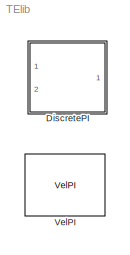
MODEL TElib
KIND library
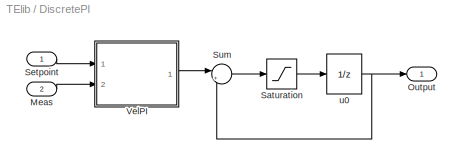
BLOCK [SubSystem] DiscretePI
  Ports = [2, 1]
  RequestExecContextInheritance = off
  SID = 1
BLOCK [Inport] DiscretePI/Meas
  Port = 2
  SID = 3
BLOCK [Outport] DiscretePI/Output
  SID = 17
BLOCK [Saturate] DiscretePI/Saturation
  LowerLimit = Lo
  SID = 4
  UpperLimit = Hi
BLOCK [Inport] DiscretePI/Setpoint
  SID = 2
BLOCK [Sum] DiscretePI/Sum
  Inputs = |++
  Ports = [2, 1]
  SID = 5
  SaturateOnIntegerOverflow = on
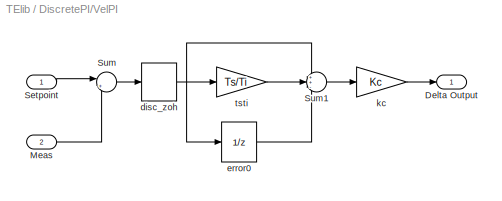
BLOCK [SubSystem] DiscretePI/VelPI
  Ports = [2, 1]
  RequestExecContextInheritance = off
  SID = 7
BLOCK [Outport] DiscretePI/VelPI/Delta Output
  SID = 16
BLOCK [Inport] DiscretePI/VelPI/Meas
  Port = 2
  SID = 9
BLOCK [Inport] DiscretePI/VelPI/Setpoint
  SID = 8
BLOCK [Sum] DiscretePI/VelPI/Sum
  Inputs = |+-
  Ports = [2, 1]
  SID = 12
  SaturateOnIntegerOverflow = on
BLOCK [Sum] DiscretePI/VelPI/Sum1
  Inputs = ++-
  Ports = [3, 1]
  SID = 13
  SaturateOnIntegerOverflow = on
BLOCK [ZeroOrderHold] DiscretePI/VelPI/disc_zoh
  SID = 15
  SampleTime = Ts
BLOCK [UnitDelay] DiscretePI/VelPI/error0
  SID = 14
  SampleTime = Ts
BLOCK [Gain] DiscretePI/VelPI/kc
  Gain = Kc
  OutDataTypeStr = Inherit: Same as input
  ParamDataTypeStr = Inherit: Same as input
  SID = 10
  SaturateOnIntegerOverflow = on
BLOCK [Gain] DiscretePI/VelPI/tsti
  Gain = Ts/Ti
  OutDataTypeStr = Inherit: Same as input
  ParamDataTypeStr = Inherit: Same as input
  SID = 11
  SaturateOnIntegerOverflow = on
BLOCK [UnitDelay] DiscretePI/u0
  InitialCondition = x0
  SID = 6
  SampleTime = Ts
BLOCK [Reference] VelPI  REF=$bdroot/DiscretePI/VelPI
  Kc = Kc
  Ports = [2, 1]
  RTWMemSecDataConstants = Inherit from model
  RTWMemSecDataInternal = Inherit from model
  RTWMemSecDataParameters = Inherit from model
  RTWMemSecFuncExecute = Inherit from model
  RTWMemSecFuncInitTerm = Inherit from model
  SID = 18
  SourceBlock = $bdroot/DiscretePI/VelPI
  Ti = Ti
  Ts = Ts
LINE DiscretePI/Meas:1 -> DiscretePI/VelPI:2
LINE DiscretePI/Saturation:1 -> DiscretePI/u0:1
LINE DiscretePI/Setpoint:1 -> DiscretePI/VelPI:1
LINE DiscretePI/Sum:1 -> DiscretePI/Saturation:1
LINE DiscretePI/VelPI/Meas:1 -> DiscretePI/VelPI/Sum:2
LINE DiscretePI/VelPI/Setpoint:1 -> DiscretePI/VelPI/Sum:1
LINE DiscretePI/VelPI/Sum1:1 -> DiscretePI/VelPI/kc:1
LINE DiscretePI/VelPI/Sum:1 -> DiscretePI/VelPI/disc_zoh:1
NET DiscretePI/VelPI/disc_zoh:1 -> DiscretePI/VelPI/Sum1:1, DiscretePI/VelPI/error0:1, DiscretePI/VelPI/tsti:1
LINE DiscretePI/VelPI/error0:1 -> DiscretePI/VelPI/Sum1:3
LINE DiscretePI/VelPI/kc:1 -> DiscretePI/VelPI/Delta Output:1
LINE DiscretePI/VelPI/tsti:1 -> DiscretePI/VelPI/Sum1:2
LINE DiscretePI/VelPI:1 -> DiscretePI/Sum:1
NET DiscretePI/u0:1 -> DiscretePI/Output:1, DiscretePI/Sum:2
note: NET lines group one-source signal fan-out (src -> all destinations, sorted); 1:1 wires keep LINE
